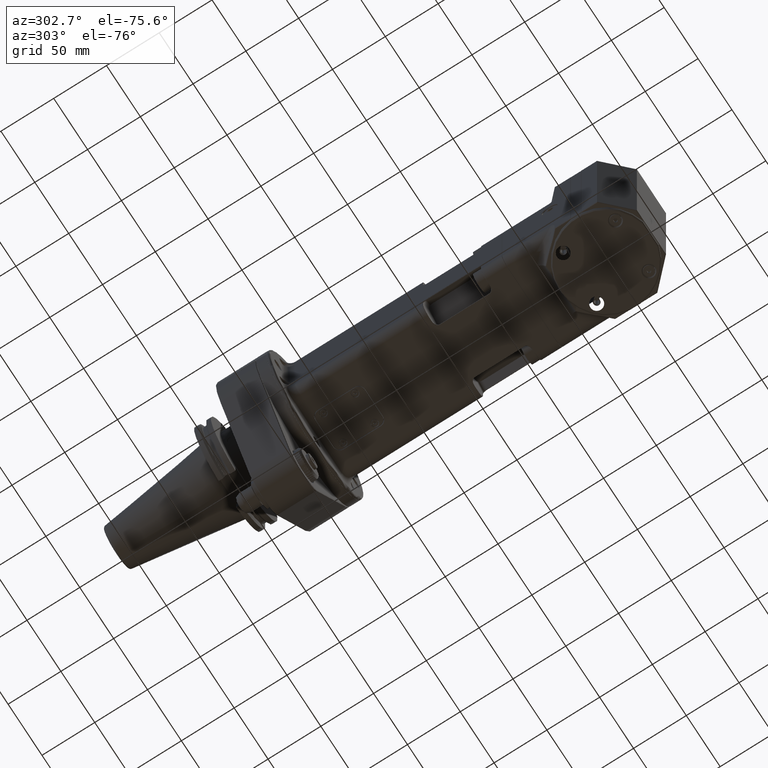
[diagram: clean part render]
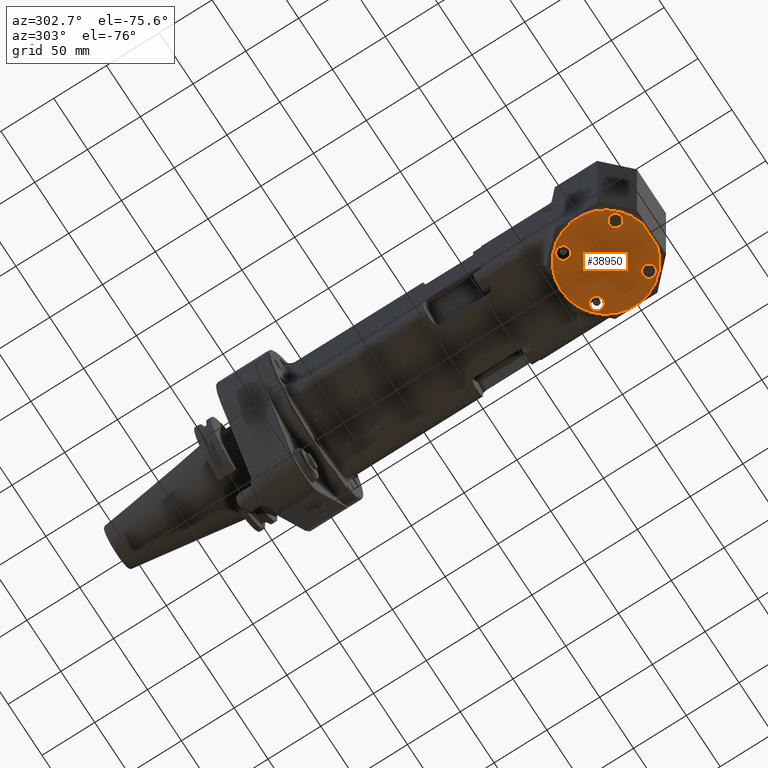
[diagram: same view with one face highlighted and labeled with its STEP entity id]
A machine part, auxiliary view. The second image highlights one B-rep face of the part: STEP entity #38950.
In plain terms, the highlighted planar face has unit normal (0, -0, 1).
Its self-contained STEP definition (entity closure, byte-faithful):
#2593=LINE('',#63176,#5625);
#5625=VECTOR('',#47244,22.51665355225);
#8800=FACE_BOUND('',#11809,.T.);
#8801=FACE_BOUND('',#11810,.T.);
#8802=FACE_BOUND('',#11811,.T.);
#8803=FACE_BOUND('',#11812,.T.);
#9334=FACE_OUTER_BOUND('',#11808,.T.);
#11808=EDGE_LOOP('',(#27543,#27544));
#11809=EDGE_LOOP('',(#27545));
#11810=EDGE_LOOP('',(#27546));
#11811=EDGE_LOOP('',(#27547));
#11812=EDGE_LOOP('',(#27548));
#14391=CIRCLE('',#41797,42.99999374259);
#14392=CIRCLE('',#41800,6.);
#14393=CIRCLE('',#41801,6.);
#14394=CIRCLE('',#41802,6.);
#14395=CIRCLE('',#41803,6.);
#16682=VERTEX_POINT('',#63166);
#16683=VERTEX_POINT('',#63170);
#16684=VERTEX_POINT('',#63178);
#16685=VERTEX_POINT('',#63180);
#16686=VERTEX_POINT('',#63182);
#16687=VERTEX_POINT('',#63184);
#20817=EDGE_CURVE('',#16683,#16682,#14391,.T.);
#20819=EDGE_CURVE('',#16682,#16683,#2593,.T.);
#20820=EDGE_CURVE('',#16684,#16684,#14392,.T.);
#20821=EDGE_CURVE('',#16685,#16685,#14393,.T.);
#20822=EDGE_CURVE('',#16686,#16686,#14394,.T.);
#20823=EDGE_CURVE('',#16687,#16687,#14395,.T.);
#27543=ORIENTED_EDGE('',*,*,#20817,.T.);
#27544=ORIENTED_EDGE('',*,*,#20819,.T.);
#27545=ORIENTED_EDGE('',*,*,#20820,.T.);
#27546=ORIENTED_EDGE('',*,*,#20821,.T.);
#27547=ORIENTED_EDGE('',*,*,#20822,.T.);
#27548=ORIENTED_EDGE('',*,*,#20823,.T.);
#37782=PLANE('',#41799);
#38950=ADVANCED_FACE('',(#9334,#8800,#8801,#8802,#8803),#37782,.F.);
#41797=AXIS2_PLACEMENT_3D('',#63171,#47240,#47241);
#41799=AXIS2_PLACEMENT_3D('',#63177,#47245,#47246);
#41800=AXIS2_PLACEMENT_3D('',#63179,#47247,#47248);
#41801=AXIS2_PLACEMENT_3D('',#63181,#47249,#47250);
#41802=AXIS2_PLACEMENT_3D('',#63183,#47251,#47252);
#41803=AXIS2_PLACEMENT_3D('',#63185,#47253,#47254);
#47240=DIRECTION('center_axis',(0.,0.,-1.));
#47241=DIRECTION('ref_axis',(-0.261821424151391,-0.965116335917768,0.));
#47244=DIRECTION('',(-1.,-6.36864611031E-10,6.598855779517E-10));
#47245=DIRECTION('center_axis',(0.,0.,1.));
#47246=DIRECTION('ref_axis',(-0.707106781186548,0.707106781186548,0.));
#47247=DIRECTION('center_axis',(0.,0.,1.));
#47248=DIRECTION('ref_axis',(-0.707106781186597,0.707106781186498,0.));
#47249=DIRECTION('center_axis',(0.,0.,1.));
#47250=DIRECTION('ref_axis',(-0.707106781186597,-0.707106781186498,0.));
#47251=DIRECTION('center_axis',(0.,0.,1.));
#47252=DIRECTION('ref_axis',(0.707106781186597,-0.707106781186498,0.));
#47253=DIRECTION('center_axis',(0.,0.,1.));
#47254=DIRECTION('ref_axis',(0.707106781186597,0.707106781186498,0.));
#63166=CARTESIAN_POINT('',(11.2583070384933,-328.499999570888,-57.9999996503162));
#63170=CARTESIAN_POINT('',(-11.2583070364173,-328.499999578505,-57.9999996429316));
#63171=CARTESIAN_POINT('Origin',(2.933399591895E-13,-287.,-58.));
#63176=CARTESIAN_POINT('',(11.25832679683,-328.4999989935,-57.9999989571));
#63177=CARTESIAN_POINT('Origin',(0.,-287.,-58.));
#63178=CARTESIAN_POINT('',(-28.99137802865,-307.5060966544,-58.));
#63179=CARTESIAN_POINT('Origin',(-24.74873734153,-311.7487373415,-58.));
#63180=CARTESIAN_POINT('',(20.50609665441,-315.9913780286,-58.));
#63181=CARTESIAN_POINT('Origin',(24.74873734153,-311.7487373415,-58.));
#63182=CARTESIAN_POINT('',(28.9913780286493,-266.493903345619,-58.));
#63183=CARTESIAN_POINT('Origin',(24.74873734153,-262.2512626585,-58.));
#63184=CARTESIAN_POINT('',(-20.5060966544107,-258.008621971381,-58.));
#63185=CARTESIAN_POINT('Origin',(-24.74873734153,-262.2512626585,-58.));